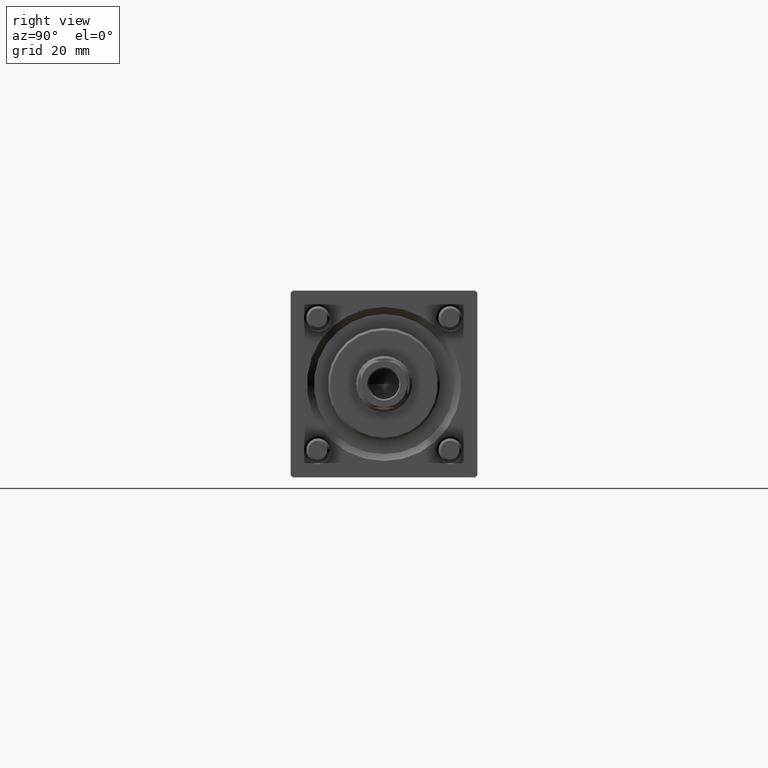
[diagram: clean part render]
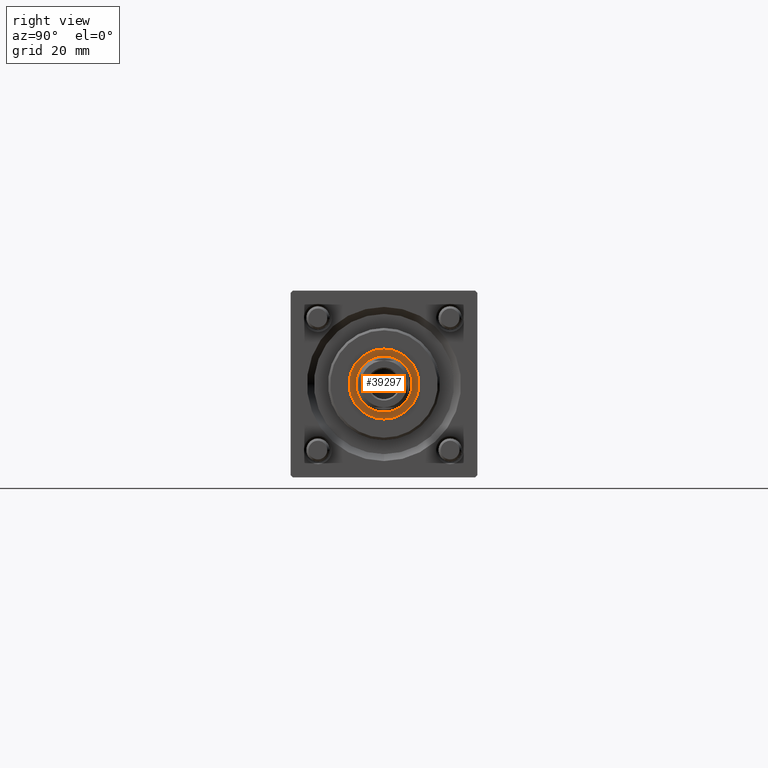
[diagram: same view with one face highlighted and labeled with its STEP entity id]
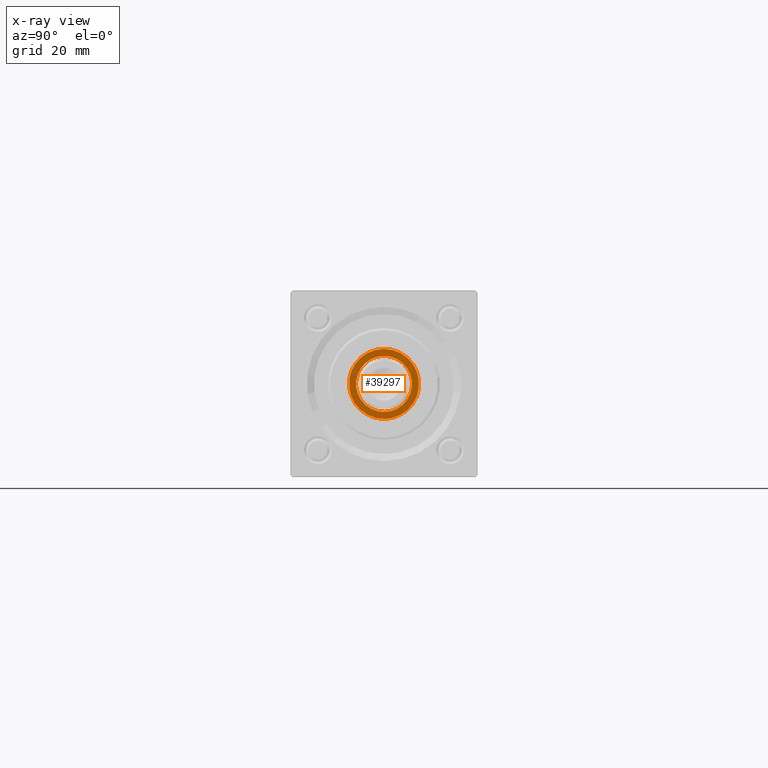
[diagram: x-ray of the same camera — body ghosted, the highlighted face saturated]
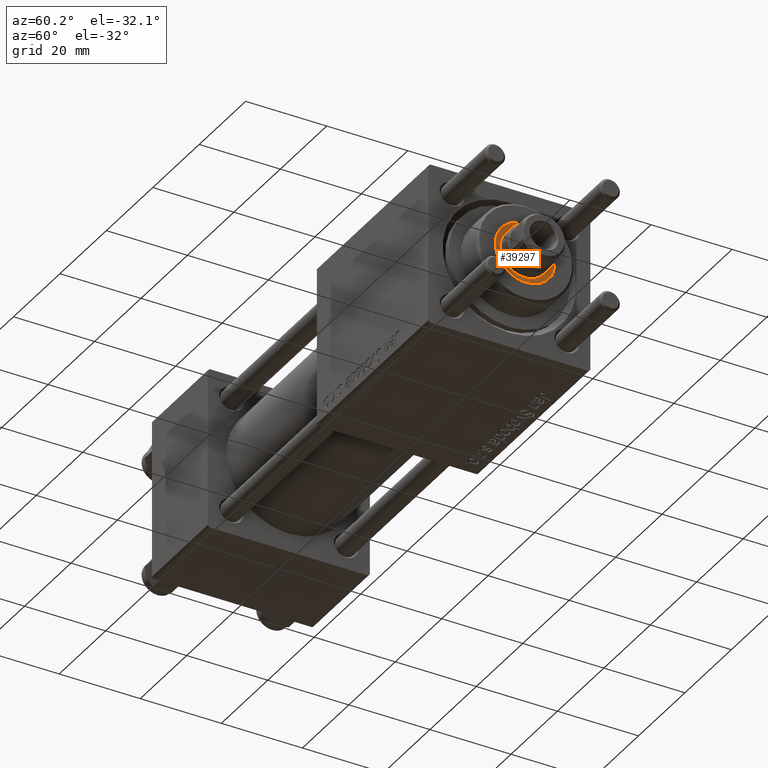
[diagram: same view with one face highlighted and labeled with its STEP entity id]
A machine part, right view. The second image highlights one B-rep face of the part: STEP entity #39297.
The next image is the same camera in x-ray: the body ghosted, the highlighted face saturated — about 0% of this face is hidden behind the body in this view.
A second angle (auxiliary view) of the same face is appended — the face is thin or edge-on in the first view.
In plain terms, the highlighted planar face has unit normal (1, 0, 0).
Its self-contained STEP definition (entity closure, byte-faithful):
#920 = DIRECTION ( 'NONE',  ( 1.000000000000000000, 0.000000000000000000, 0.000000000000000000 ) ) ;
#3948 = AXIS2_PLACEMENT_3D ( 'NONE', #12864, #39537, #38977 ) ;
#5061 = ORIENTED_EDGE ( 'NONE', *, *, #53504, .T. ) ;
#5614 = EDGE_CURVE ( 'NONE', #56481, #16346, #23792, .T. ) ;
#7280 = ORIENTED_EDGE ( 'NONE', *, *, #34825, .T. ) ;
#8548 = PLANE ( 'NONE',  #3948 ) ;
#8687 = CARTESIAN_POINT ( 'NONE',  ( 0.000000000000000000, 0.000000000000000000, 35.20000000000000284 ) ) ;
#9256 = DIRECTION ( 'NONE',  ( 0.000000000000000000, 0.000000000000000000, 1.000000000000000000 ) ) ;
#9631 = CARTESIAN_POINT ( 'NONE',  ( 0.000000000000000000, 0.000000000000000000, 35.20000000000000284 ) ) ;
#12864 = CARTESIAN_POINT ( 'NONE',  ( 0.000000000000000000, 0.000000000000000000, 35.20000000000000284 ) ) ;
#16199 = DIRECTION ( 'NONE',  ( 0.000000000000000000, 0.000000000000000000, 1.000000000000000000 ) ) ;
#16246 = CIRCLE ( 'NONE', #39260, 6.000000000000000888 ) ;
#16346 = VERTEX_POINT ( 'NONE', #53222 ) ;
#18001 = AXIS2_PLACEMENT_3D ( 'NONE', #8687, #9256, #920 ) ;
#23792 = CIRCLE ( 'NONE', #31151, 6.000000000000000888 ) ;
#25341 = EDGE_LOOP ( 'NONE', ( #48602, #5061 ) ) ;
#26158 = AXIS2_PLACEMENT_3D ( 'NONE', #9631, #16199, #32849 ) ;
#26612 = FACE_BOUND ( 'NONE', #45435, .T. ) ;
#28931 = EDGE_CURVE ( 'NONE', #50068, #55265, #46323, .T. ) ;
#30083 = FACE_OUTER_BOUND ( 'NONE', #25341, .T. ) ;
#31151 = AXIS2_PLACEMENT_3D ( 'NONE', #40852, #31981, #32259 ) ;
#31307 = CARTESIAN_POINT ( 'NONE',  ( -7.500000000000000888, 9.184850993605149917E-16, 35.20000000000000284 ) ) ;
#31981 = DIRECTION ( 'NONE',  ( -0.000000000000000000, -0.000000000000000000, -1.000000000000000000 ) ) ;
#32259 = DIRECTION ( 'NONE',  ( 1.000000000000000000, 0.000000000000000000, 0.000000000000000000 ) ) ;
#32849 = DIRECTION ( 'NONE',  ( 1.000000000000000000, 0.000000000000000000, 0.000000000000000000 ) ) ;
#34825 = EDGE_CURVE ( 'NONE', #16346, #56481, #16246, .T. ) ;
#38977 = DIRECTION ( 'NONE',  ( 1.000000000000000000, 0.000000000000000000, -0.000000000000000000 ) ) ;
#39260 = AXIS2_PLACEMENT_3D ( 'NONE', #44905, #50342, #45182 ) ;
#39297 = ADVANCED_FACE ( 'NONE', ( #30083, #26612 ), #8548, .T. ) ;
#39537 = DIRECTION ( 'NONE',  ( 0.000000000000000000, 0.000000000000000000, 1.000000000000000000 ) ) ;
#39888 = CARTESIAN_POINT ( 'NONE',  ( 6.000000000000000888, 0.000000000000000000, 35.20000000000000284 ) ) ;
#40540 = ORIENTED_EDGE ( 'NONE', *, *, #5614, .T. ) ;
#40852 = CARTESIAN_POINT ( 'NONE',  ( 0.000000000000000000, 0.000000000000000000, 35.20000000000000284 ) ) ;
#41403 = CARTESIAN_POINT ( 'NONE',  ( 7.500000000000000888, 0.000000000000000000, 35.20000000000000284 ) ) ;
#44905 = CARTESIAN_POINT ( 'NONE',  ( 0.000000000000000000, 0.000000000000000000, 35.20000000000000284 ) ) ;
#45182 = DIRECTION ( 'NONE',  ( 1.000000000000000000, 0.000000000000000000, 0.000000000000000000 ) ) ;
#45435 = EDGE_LOOP ( 'NONE', ( #40540, #7280 ) ) ;
#45475 = CIRCLE ( 'NONE', #18001, 7.500000000000000888 ) ;
#46323 = CIRCLE ( 'NONE', #26158, 7.500000000000000888 ) ;
#48602 = ORIENTED_EDGE ( 'NONE', *, *, #28931, .T. ) ;
#50068 = VERTEX_POINT ( 'NONE', #41403 ) ;
#50342 = DIRECTION ( 'NONE',  ( -0.000000000000000000, -0.000000000000000000, -1.000000000000000000 ) ) ;
#53222 = CARTESIAN_POINT ( 'NONE',  ( -6.000000000000000888, 7.347880794884119736E-16, 35.20000000000000284 ) ) ;
#53504 = EDGE_CURVE ( 'NONE', #55265, #50068, #45475, .T. ) ;
#55265 = VERTEX_POINT ( 'NONE', #31307 ) ;
#56481 = VERTEX_POINT ( 'NONE', #39888 ) ;